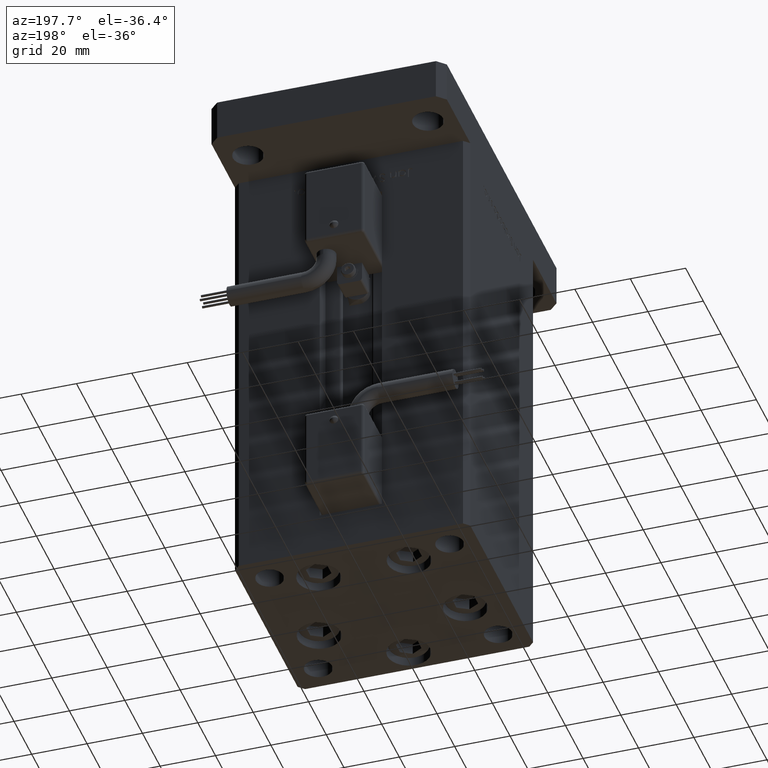
[diagram: clean part render]
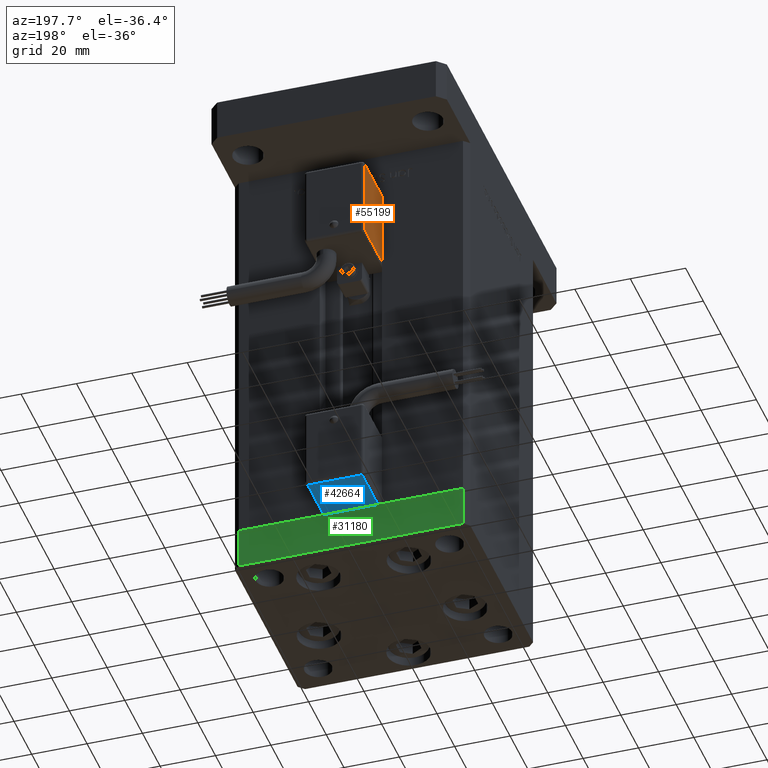
[diagram: same view with three faces highlighted in distinct colors, each labeled with its STEP entity id]
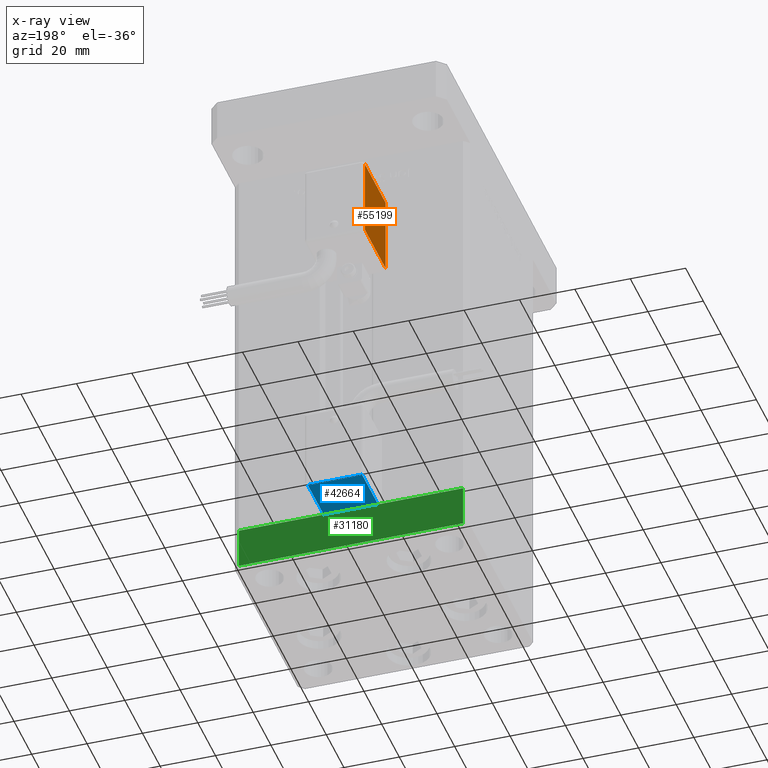
[diagram: x-ray of the same camera — body ghosted, the three highlighted faces saturated]
A machine part, auxiliary view with three faces highlighted in distinct colors.
The next image is the same camera in x-ray (body ghosted, the three faces saturated) — at least one of them is partly hidden behind the body in this view.
Their STEP definitions:

[orange] entity #55199 — the highlighted planar face has unit normal (1, 0, 0).
#3479 = DIRECTION ( 'NONE',  ( 1.000000000000000000, 4.930380657629929601E-32, 1.094764425253299406E-47 ) ) ;
#4185 = ORIENTED_EDGE ( 'NONE', *, *, #9578, .T. ) ;
#4616 = DIRECTION ( 'NONE',  ( 0.000000000000000000, -2.220446049250000002E-16, 1.000000000000000000 ) ) ;
#8261 = CARTESIAN_POINT ( 'NONE',  ( -10.80000000000000071, 50.50000000000000000, -26.00000000000000000 ) ) ;
#9340 = ORIENTED_EDGE ( 'NONE', *, *, #9573, .T. ) ;
#9573 = EDGE_CURVE ( 'NONE', #20815, #45447, #38592, .T. ) ;
#9578 = EDGE_CURVE ( 'NONE', #55475, #20815, #39159, .T. ) ;
#12898 = CARTESIAN_POINT ( 'NONE',  ( -10.80000000000000071, 26.00000000000000000, -55.00000000000000000 ) ) ;
#13354 = VERTEX_POINT ( 'NONE', #42572 ) ;
#15373 = VECTOR ( 'NONE', #28140, 1000.000000000000000 ) ;
#17765 = ORIENTED_EDGE ( 'NONE', *, *, #47470, .T. ) ;
#20815 = VERTEX_POINT ( 'NONE', #40040 ) ;
#26345 = VECTOR ( 'NONE', #50591, 1000.000000000000000 ) ;
#27561 = LINE ( 'NONE', #49907, #15373 ) ;
#28140 = DIRECTION ( 'NONE',  ( -2.220446049250000002E-16, -1.200000000000000024E-16, 1.000000000000000000 ) ) ;
#29453 = EDGE_CURVE ( 'NONE', #45447, #13354, #27561, .T. ) ;
#29706 = DIRECTION ( 'NONE',  ( 3.108624468950000014E-32, -1.000000000000000000, -1.400000000000000069E-16 ) ) ;
#30846 = DIRECTION ( 'NONE',  ( 2.220446049250000002E-16, 1.200000000000000024E-16, -1.000000000000000000 ) ) ;
#32157 = AXIS2_PLACEMENT_3D ( 'NONE', #12898, #3479, #4616 ) ;
#34004 = CARTESIAN_POINT ( 'NONE',  ( -10.80000000000000071, 26.00000000000000000, -54.00000000000000000 ) ) ;
#34891 = VECTOR ( 'NONE', #30846, 1000.000000000000000 ) ;
#38592 = LINE ( 'NONE', #34004, #48624 ) ;
#39159 = LINE ( 'NONE', #39730, #34891 ) ;
#39273 = FACE_OUTER_BOUND ( 'NONE', #44797, .T. ) ;
#39730 = CARTESIAN_POINT ( 'NONE',  ( -10.80000000000000071, 50.50000000000000000, -55.00000000000000000 ) ) ;
#40040 = CARTESIAN_POINT ( 'NONE',  ( -10.80000000000000071, 50.50000000000000000, -54.00000000000000000 ) ) ;
#41157 = CARTESIAN_POINT ( 'NONE',  ( -10.80000000000000071, 26.00000000000000000, -26.00000000000000000 ) ) ;
#42572 = CARTESIAN_POINT ( 'NONE',  ( -10.80000000000000071, 27.00000000000000000, -26.00000000000000000 ) ) ;
#43009 = PLANE ( 'NONE',  #32157 ) ;
#44797 = EDGE_LOOP ( 'NONE', ( #17765, #4185, #9340, #52464 ) ) ;
#45447 = VERTEX_POINT ( 'NONE', #55508 ) ;
#47470 = EDGE_CURVE ( 'NONE', #13354, #55475, #51155, .T. ) ;
#48624 = VECTOR ( 'NONE', #29706, 1000.000000000000000 ) ;
#49907 = CARTESIAN_POINT ( 'NONE',  ( -10.80000000000000071, 27.00000000000000000, -55.00000000000000000 ) ) ;
#50591 = DIRECTION ( 'NONE',  ( -3.108624468950000014E-32, 1.000000000000000000, 1.400000000000000069E-16 ) ) ;
#51155 = LINE ( 'NONE', #41157, #26345 ) ;
#52464 = ORIENTED_EDGE ( 'NONE', *, *, #29453, .T. ) ;
#55199 = ADVANCED_FACE ( 'NONE', ( #39273 ), #43009, .F. ) ;
#55475 = VERTEX_POINT ( 'NONE', #8261 ) ;
#55508 = CARTESIAN_POINT ( 'NONE',  ( -10.80000000000000071, 27.00000000000000000, -54.00000000000000000 ) ) ;

[blue] entity #42664 — the highlighted planar face has unit normal (0, 0, 1).
#171 = VERTEX_POINT ( 'NONE', #11081 ) ;
#1120 = CARTESIAN_POINT ( 'NONE',  ( 10.80000000000000071, 27.00000000000000000, -25.00000000000000000 ) ) ;
#1534 = DIRECTION ( 'NONE',  ( 3.108624468950000014E-32, -1.000000000000000000, -1.400000000000000069E-16 ) ) ;
#2665 = EDGE_CURVE ( 'NONE', #171, #43949, #18292, .T. ) ;
#7306 = ORIENTED_EDGE ( 'NONE', *, *, #56152, .T. ) ;
#7706 = CARTESIAN_POINT ( 'NONE',  ( 9.799999999999998934, 51.50000000000000000, -25.00000000000000000 ) ) ;
#11081 = CARTESIAN_POINT ( 'NONE',  ( -9.799999999999998934, 27.00000000000000000, -25.00000000000000000 ) ) ;
#11500 = CARTESIAN_POINT ( 'NONE',  ( 10.80000000000000071, 50.50000000000000000, -25.00000000000000000 ) ) ;
#12405 = PLANE ( 'NONE',  #29037 ) ;
#12844 = DIRECTION ( 'NONE',  ( -3.108624468950000014E-32, 1.000000000000000000, 1.400000000000000069E-16 ) ) ;
#14754 = VECTOR ( 'NONE', #12844, 1000.000000000000000 ) ;
#15250 = DIRECTION ( 'NONE',  ( -1.000000000000000000, 0.000000000000000000, -2.220446049250000002E-16 ) ) ;
#15441 = VERTEX_POINT ( 'NONE', #55905 ) ;
#15476 = EDGE_LOOP ( 'NONE', ( #38324, #38540, #7306, #18014 ) ) ;
#16574 = LINE ( 'NONE', #7706, #14754 ) ;
#18014 = ORIENTED_EDGE ( 'NONE', *, *, #18956, .T. ) ;
#18292 = LINE ( 'NONE', #1120, #29549 ) ;
#18956 = EDGE_CURVE ( 'NONE', #15441, #51425, #24422, .T. ) ;
#20435 = CARTESIAN_POINT ( 'NONE',  ( 10.80000000000000071, 51.50000000000000000, -25.00000000000000000 ) ) ;
#24422 = LINE ( 'NONE', #11500, #51723 ) ;
#25885 = FACE_OUTER_BOUND ( 'NONE', #15476, .T. ) ;
#27875 = LINE ( 'NONE', #40483, #38520 ) ;
#29037 = AXIS2_PLACEMENT_3D ( 'NONE', #20435, #47379, #29891 ) ;
#29549 = VECTOR ( 'NONE', #31482, 1000.000000000000000 ) ;
#29891 = DIRECTION ( 'NONE',  ( 0.000000000000000000, -1.000000000000000000, -1.400000000000000069E-16 ) ) ;
#31482 = DIRECTION ( 'NONE',  ( 1.000000000000000000, 0.000000000000000000, 2.220446049250000002E-16 ) ) ;
#33839 = CARTESIAN_POINT ( 'NONE',  ( 9.799999999999998934, 27.00000000000000000, -25.00000000000000000 ) ) ;
#37731 = CARTESIAN_POINT ( 'NONE',  ( -9.799999999999998934, 50.50000000000000000, -25.00000000000000000 ) ) ;
#38324 = ORIENTED_EDGE ( 'NONE', *, *, #55826, .T. ) ;
#38520 = VECTOR ( 'NONE', #1534, 1000.000000000000000 ) ;
#38540 = ORIENTED_EDGE ( 'NONE', *, *, #2665, .T. ) ;
#40483 = CARTESIAN_POINT ( 'NONE',  ( -9.799999999999998934, 51.50000000000000000, -25.00000000000000000 ) ) ;
#42664 = ADVANCED_FACE ( 'NONE', ( #25885 ), #12405, .F. ) ;
#43949 = VERTEX_POINT ( 'NONE', #33839 ) ;
#47379 = DIRECTION ( 'NONE',  ( 2.220446049250000002E-16, 1.400000000000000069E-16, -1.000000000000000000 ) ) ;
#51425 = VERTEX_POINT ( 'NONE', #37731 ) ;
#51723 = VECTOR ( 'NONE', #15250, 1000.000000000000000 ) ;
#55826 = EDGE_CURVE ( 'NONE', #51425, #171, #27875, .T. ) ;
#55905 = CARTESIAN_POINT ( 'NONE',  ( 9.799999999999998934, 50.50000000000000000, -25.00000000000000000 ) ) ;
#56152 = EDGE_CURVE ( 'NONE', #43949, #15441, #16574, .T. ) ;

[green] entity #31180 — the highlighted planar face has unit normal (0, 1, 0).
#373 = LINE ( 'NONE', #25859, #8844 ) ;
#753 = LINE ( 'NONE', #18199, #6315 ) ;
#4134 = CARTESIAN_POINT ( 'NONE',  ( 40.49999999999991473, 37.50000000000000711, -15.00000000000000000 ) ) ;
#4681 = VERTEX_POINT ( 'NONE', #40100 ) ;
#6315 = VECTOR ( 'NONE', #52611, 1000.000000000000000 ) ;
#7089 = VECTOR ( 'NONE', #18386, 1000.000000000000000 ) ;
#8628 = VECTOR ( 'NONE', #45913, 1000.000000000000000 ) ;
#8844 = VECTOR ( 'NONE', #12665, 1000.000000000000000 ) ;
#10799 = ORIENTED_EDGE ( 'NONE', *, *, #35326, .F. ) ;
#12665 = DIRECTION ( 'NONE',  ( 0.000000000000000000, 0.000000000000000000, 1.000000000000000000 ) ) ;
#16910 = DIRECTION ( 'NONE',  ( -3.426614273534436165E-16, 1.000000000000000000, 0.000000000000000000 ) ) ;
#18199 = CARTESIAN_POINT ( 'NONE',  ( -40.50000000000000711, 37.49999999999997868, -15.00000000000000000 ) ) ;
#18386 = DIRECTION ( 'NONE',  ( -1.000000000000000000, -3.426614273534436165E-16, 0.000000000000000000 ) ) ;
#18958 = CARTESIAN_POINT ( 'NONE',  ( 40.49999999999991473, 37.50000000000000711, -15.00000000000000000 ) ) ;
#21386 = CARTESIAN_POINT ( 'NONE',  ( 40.49999999999991473, 37.50000000000000711, 0.000000000000000000 ) ) ;
#23658 = AXIS2_PLACEMENT_3D ( 'NONE', #46725, #16910, #51050 ) ;
#25859 = CARTESIAN_POINT ( 'NONE',  ( 40.49999999999991473, 37.50000000000000711, -15.00000000000000000 ) ) ;
#27183 = EDGE_CURVE ( 'NONE', #35941, #52334, #373, .T. ) ;
#27286 = EDGE_CURVE ( 'NONE', #35941, #4681, #45327, .T. ) ;
#28447 = CARTESIAN_POINT ( 'NONE',  ( 40.49999999999991473, 37.50000000000000711, 0.000000000000000000 ) ) ;
#31180 = ADVANCED_FACE ( 'NONE', ( #38698 ), #33544, .T. ) ;
#33544 = PLANE ( 'NONE',  #23658 ) ;
#34155 = ORIENTED_EDGE ( 'NONE', *, *, #27183, .F. ) ;
#35326 = EDGE_CURVE ( 'NONE', #52334, #56032, #45360, .T. ) ;
#35941 = VERTEX_POINT ( 'NONE', #4134 ) ;
#38698 = FACE_OUTER_BOUND ( 'NONE', #47692, .T. ) ;
#40100 = CARTESIAN_POINT ( 'NONE',  ( -40.50000000000000711, 37.49999999999997868, -15.00000000000000000 ) ) ;
#40968 = ORIENTED_EDGE ( 'NONE', *, *, #27286, .T. ) ;
#41202 = ORIENTED_EDGE ( 'NONE', *, *, #50420, .T. ) ;
#45327 = LINE ( 'NONE', #18958, #7089 ) ;
#45360 = LINE ( 'NONE', #28447, #8628 ) ;
#45913 = DIRECTION ( 'NONE',  ( -1.000000000000000000, -3.426614273534436165E-16, 0.000000000000000000 ) ) ;
#46725 = CARTESIAN_POINT ( 'NONE',  ( 40.49999999999991473, 37.50000000000000711, -15.00000000000000000 ) ) ;
#47692 = EDGE_LOOP ( 'NONE', ( #10799, #34155, #40968, #41202 ) ) ;
#49016 = CARTESIAN_POINT ( 'NONE',  ( -40.50000000000000711, 37.49999999999997868, 0.000000000000000000 ) ) ;
#50420 = EDGE_CURVE ( 'NONE', #4681, #56032, #753, .T. ) ;
#51050 = DIRECTION ( 'NONE',  ( -1.000000000000000000, -3.426614273534436165E-16, 0.000000000000000000 ) ) ;
#52334 = VERTEX_POINT ( 'NONE', #21386 ) ;
#52611 = DIRECTION ( 'NONE',  ( 0.000000000000000000, 0.000000000000000000, 1.000000000000000000 ) ) ;
#56032 = VERTEX_POINT ( 'NONE', #49016 ) ;